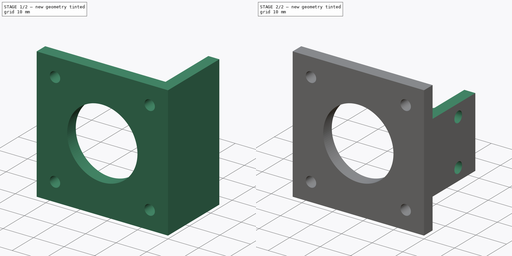
[diagram: build sequence overview — one tinted view per stage of 2, left to right]
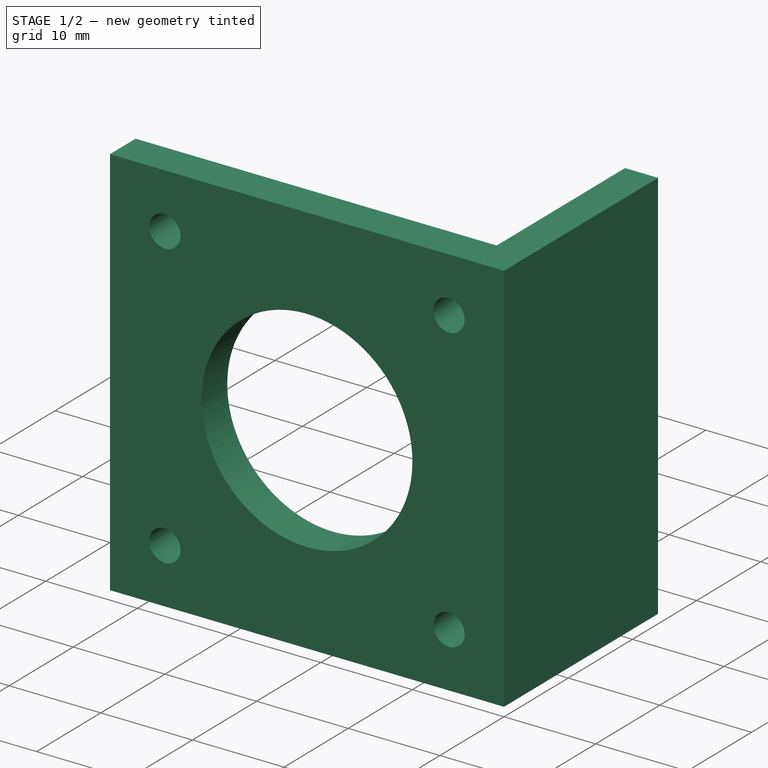
[diagram: stage 1 of 2 — iso view after this stage's code; geometry added in this stage tinted green]
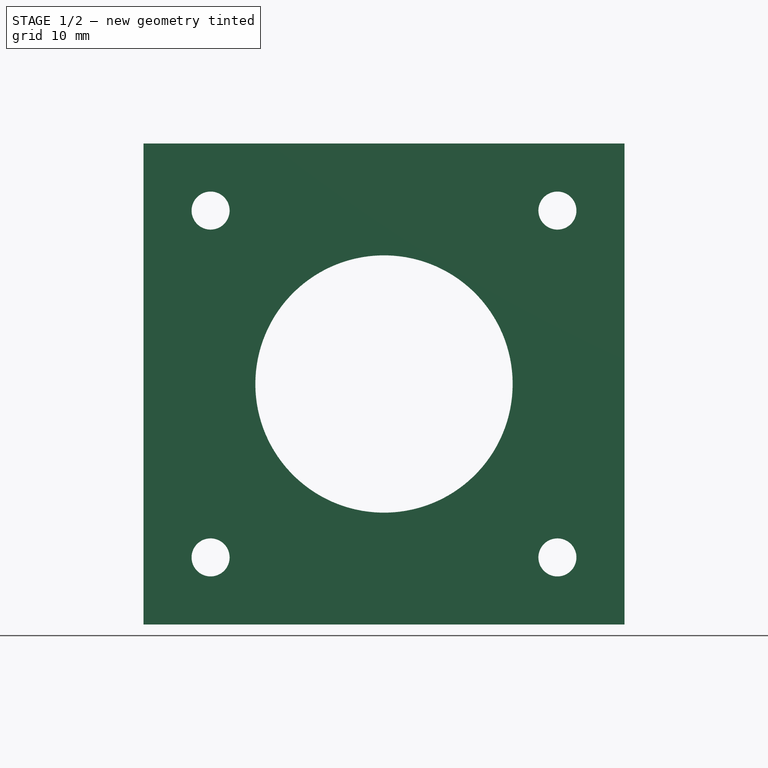
[diagram: stage 1 of 2 — front view after this stage's code; geometry added in this stage tinted green]
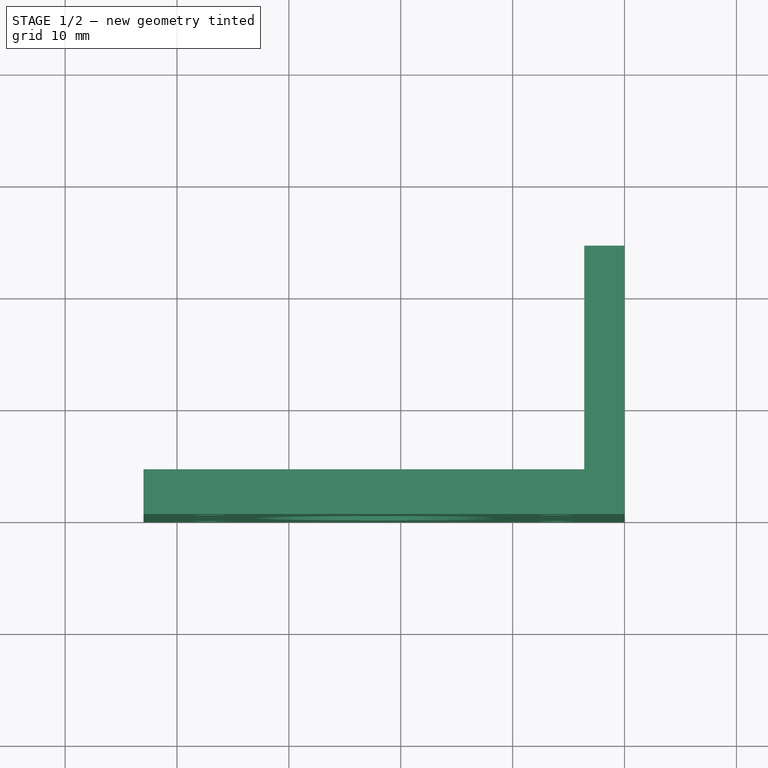
[diagram: stage 1 of 2 — top view after this stage's code; geometry added in this stage tinted green]
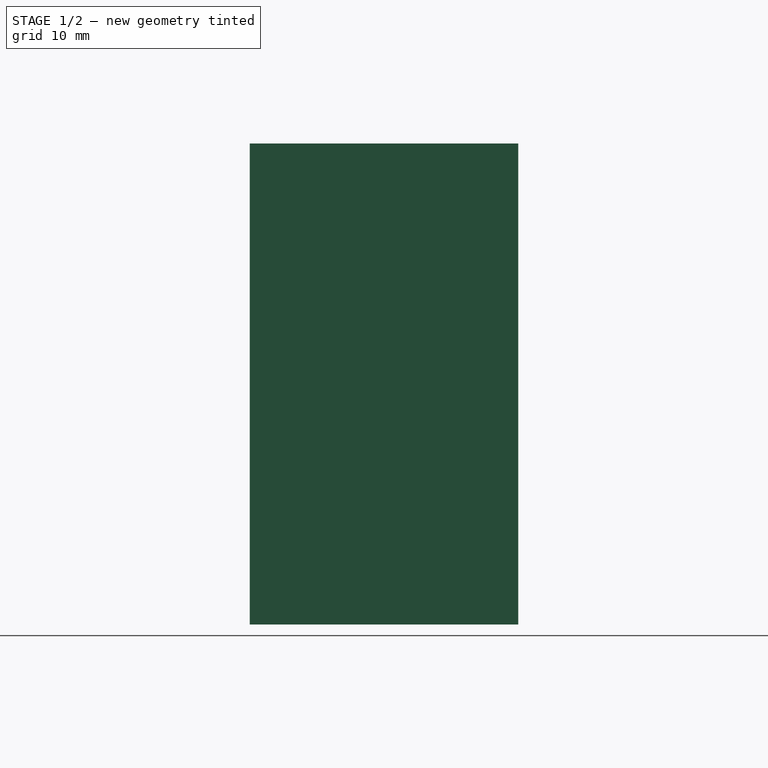
[diagram: stage 1 of 2 — right view after this stage's code; geometry added in this stage tinted green]
FCSTD DOCUMENT  (FreeCAD 0.16R6706 (Git))
Label: Suporte Motor Lateral
License: All rights reserved
LicenseURL: http://en.wikipedia.org/wiki/All_rights_reserved
objects: Sketcher::SketchObject×3, PartDesign::Pocket×2, PartDesign::Pad×1, PartDesign::Chamfer×1
note: 10 computed .brp shape members not serialized (recipe doc carries the construction recipe); baked Part::Feature solids carry a one-line shape summary decoded from their .brp

FEATURE [Sketcher::SketchObject] Sketch003
  sketch-geometry (6):
    g0: LineSegment StartX=-43 StartY=4 StartZ=0 EndX=-3.6 EndY=4 EndZ=0
    g1: LineSegment StartX=-3.6 StartY=4 StartZ=0 EndX=-3.6 EndY=24 EndZ=0
    g2: LineSegment StartX=-3.6 StartY=24 StartZ=0 EndX=0 EndY=24 EndZ=0
    g3: LineSegment StartX=0 StartY=24 StartZ=0 EndX=0 EndY=0 EndZ=0
    g4: LineSegment StartX=0 StartY=0 StartZ=0 EndX=-43 EndY=0 EndZ=0
    g5: LineSegment StartX=-43 StartY=0 StartZ=0 EndX=-43 EndY=4 EndZ=0
  constraints (17):
    c: Coincident(g0,g1)
    c: Coincident(g1,g2)
    c: Coincident(g2,g3)
    c: Coincident(g3,g4)
    c: Coincident(g4,g5)
    c: Coincident(g0,g5)
    c: Horizontal(g0)
    c: Horizontal(g4)
    c: Horizontal(g2)
    c: Vertical(g3)
    c: Vertical(g1)
    c: Vertical(g5)
    c: DistanceX(g4,g4) = 43
    c: DistanceX(g2,g2) = 3.6
    c: DistanceY(g5,g5) = 4
    c: Coincident(g-1,g3)
    c: DistanceY(g1,g1) = 20
FEATURE [PartDesign::Pad] Pad003
  Length = 43
  Length2 = 100
  Sketch = -> Sketch003
  Type = 0
FEATURE [Sketcher::SketchObject] Sketch004
  ExternalGeometry = -> [Pad003]
  Placement = pos=(0,0,0) rot=(1,0,0;1.5708rad)
  Support = -> Pad003 [Face5]
  sketch-geometry (9):
    g0: Circle CenterX=-21.5 CenterY=21.5 CenterZ=0 NormalX=0 NormalY=0 NormalZ=1 Radius=11.5
    g1: LineSegment [constr] StartX=-37 StartY=37 StartZ=0 EndX=-6 EndY=37 EndZ=0
    g2: LineSegment [constr] StartX=-6 StartY=37 StartZ=0 EndX=-6 EndY=6 EndZ=0
    g3: LineSegment [constr] StartX=-6 StartY=6 StartZ=0 EndX=-37 EndY=6 EndZ=0
    g4: LineSegment [constr] StartX=-37 StartY=6 StartZ=0 EndX=-37 EndY=37 EndZ=0
    g5: Circle CenterX=-37 CenterY=37 CenterZ=0 NormalX=0 NormalY=0 NormalZ=1 Radius=1.7
    g6: Circle CenterX=-6 CenterY=37 CenterZ=0 NormalX=0 NormalY=0 NormalZ=1 Radius=1.7
    g7: Circle CenterX=-6 CenterY=6 CenterZ=0 NormalX=0 NormalY=0 NormalZ=1 Radius=1.7
    g8: Circle CenterX=-37 CenterY=6 CenterZ=0 NormalX=0 NormalY=0 NormalZ=1 Radius=1.7
  constraints (23):
    c: Symmetric(g-6,g-5,g0)
    c: Radius(g0) = 11.5
    c: Coincident(g1,g2)
    c: Coincident(g2,g3)
    c: Coincident(g3,g4)
    c: Coincident(g4,g1)
    c: Horizontal(g1)
    c: Horizontal(g3)
    c: Vertical(g2)
    c: Vertical(g4)
    c: Symmetric(g1,g3,g0)
    c: DistanceX(g1,g1) = 31
    c: Equal(g1,g4)
    c: Radius(g5) = 1.7
    c: Equal(g5,g6) = 1.7
    c: Equal(g5,g7) = 1.7
    c: Equal(g5,g8) = 1.7
    c: Coincident(g1,g5)
    c: Coincident(g1,g6)
    c: Coincident(g2,g7)
    c: Coincident(g3,g8)
    c: DistanceX(g-6,g-6) = 43
    c: DistanceY(g-4,g-4) = 43
FEATURE [PartDesign::Pocket] Pocket
  Length = 5
  Sketch = -> Sketch004
  Type = 2
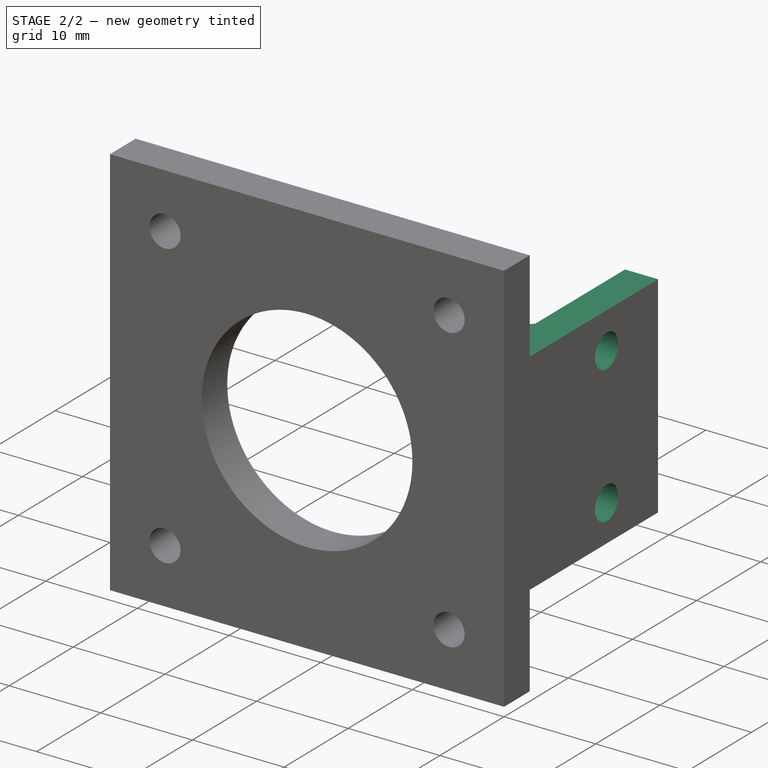
[diagram: stage 2 of 2 — iso view after this stage's code; geometry added in this stage tinted green]
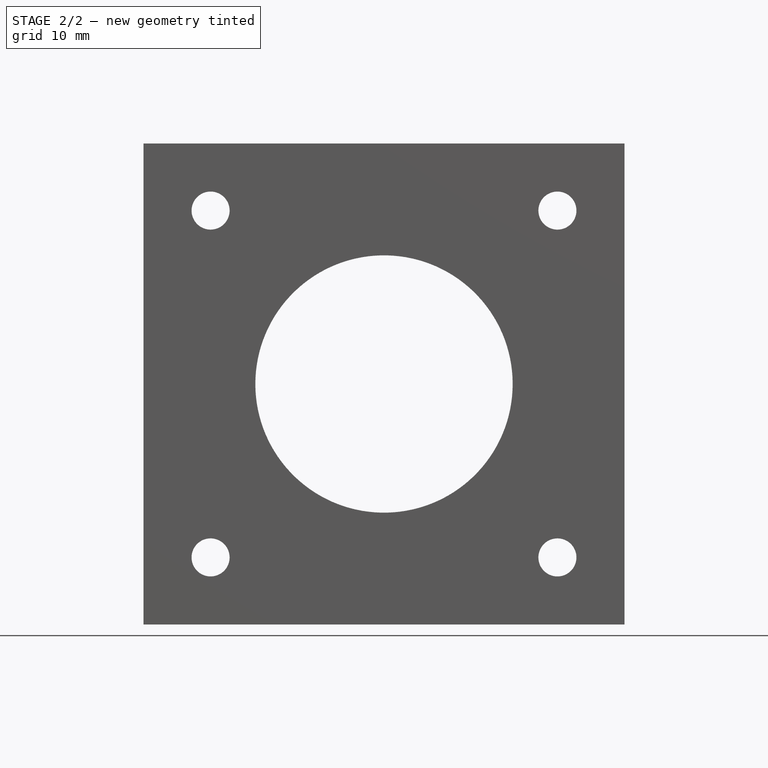
[diagram: stage 2 of 2 — front view after this stage's code; geometry added in this stage tinted green]
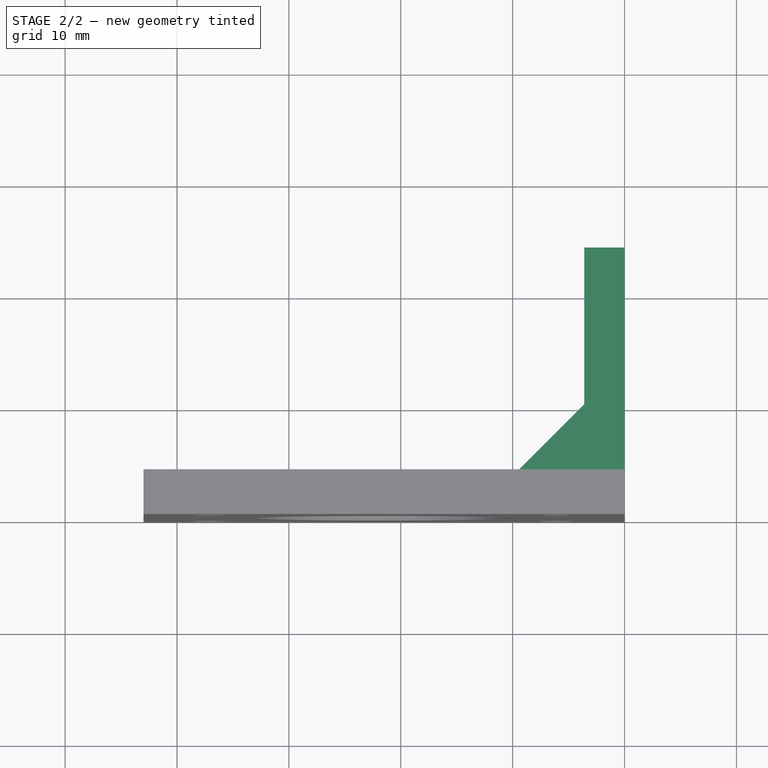
[diagram: stage 2 of 2 — top view after this stage's code; geometry added in this stage tinted green]
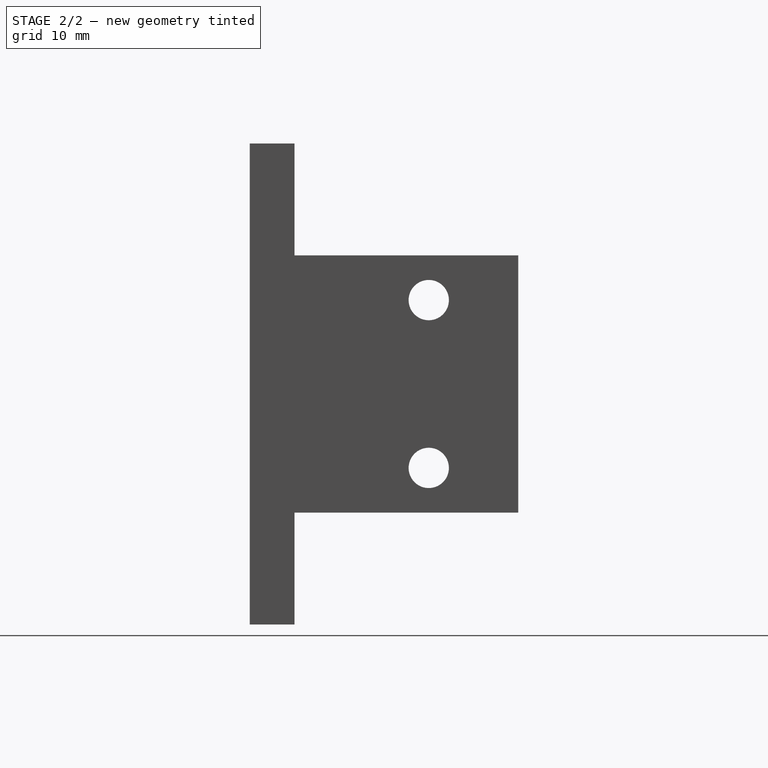
[diagram: stage 2 of 2 — right view after this stage's code; geometry added in this stage tinted green]
FEATURE [Sketcher::SketchObject] Sketch005
  ExternalGeometry = -> [Pocket]
  Placement = pos=(0,0,0) rot=(0.57735,0.57735,0.57735;2.0944rad)
  Support = -> Pocket [Face13]
  sketch-geometry (12):
    g0: LineSegment StartX=4 StartY=43 StartZ=0 EndX=24 EndY=43 EndZ=0
    g1: LineSegment StartX=24 StartY=43 StartZ=0 EndX=24 EndY=33 EndZ=0
    g2: LineSegment StartX=24 StartY=33 StartZ=0 EndX=4 EndY=33 EndZ=0
    g3: LineSegment StartX=4 StartY=33 StartZ=0 EndX=4 EndY=43 EndZ=0
    g4: LineSegment StartX=4 StartY=10 StartZ=0 EndX=24 EndY=10 EndZ=0
    g5: LineSegment StartX=24 StartY=10 StartZ=0 EndX=24 EndY=0 EndZ=0
    g6: LineSegment StartX=24 StartY=0 StartZ=0 EndX=4 EndY=0 EndZ=0
    g7: LineSegment StartX=4 StartY=0 StartZ=0 EndX=4 EndY=10 EndZ=0
    g8: LineSegment [constr] StartX=16 StartY=29 StartZ=0 EndX=16 EndY=14 EndZ=0
    g9: Circle CenterX=16 CenterY=29 CenterZ=0 NormalX=0 NormalY=0 NormalZ=1 Radius=1.8
    g10: Circle CenterX=16 CenterY=14 CenterZ=0 NormalX=0 NormalY=0 NormalZ=1 Radius=1.8
    g11: LineSegment [constr] StartX=16 StartY=21.5 StartZ=0 EndX=24 EndY=21.5 EndZ=0
  constraints (34):
    c: Coincident(g0,g1)
    c: Coincident(g1,g2)
    c: Coincident(g2,g3)
    c: Coincident(g3,g0)
    c: Horizontal(g0)
    c: Horizontal(g2)
    c: Vertical(g1)
    c: Vertical(g3)
    c: Coincident(g4,g5)
    c: Coincident(g5,g6)
    c: Coincident(g6,g7)
    c: Coincident(g7,g4)
    c: Horizontal(g4)
    c: Horizontal(g6)
    c: Vertical(g5)
    c: Vertical(g7)
    c: Equal(g0,g4) = 5
    c: Vertical(g8)
    c: DistanceY(g8,g8) = 15
    c: Radius(g9) = 1.8
    c: Equal(g9,g10) = 2
    c: Coincident(g8,g9)
    c: Coincident(g8,g10)
    c: DistanceX(g-1,g8) = 16
    c: Horizontal(g11)
    c: DistanceX(g11,g11) = 8
    c: Symmetric(g-6,g-6,g11)
    c: Symmetric(g8,g8,g11)
    c: PointOnObject(g4,g3)
    c: DistanceX(g-4,g0) = 4
    c: Coincident(g0,g-6)
    c: Coincident(g5,g-6)
    c: Equal(g3,g7)
    c: DistanceY(g8,g1) = 4
FEATURE [PartDesign::Pocket] Pocket001
  Length = 5
  Sketch = -> Sketch005
  Type = 2
FEATURE [PartDesign::Chamfer] Chamfer
  Base = -> Pocket001 [Edge6]
  Size = 6
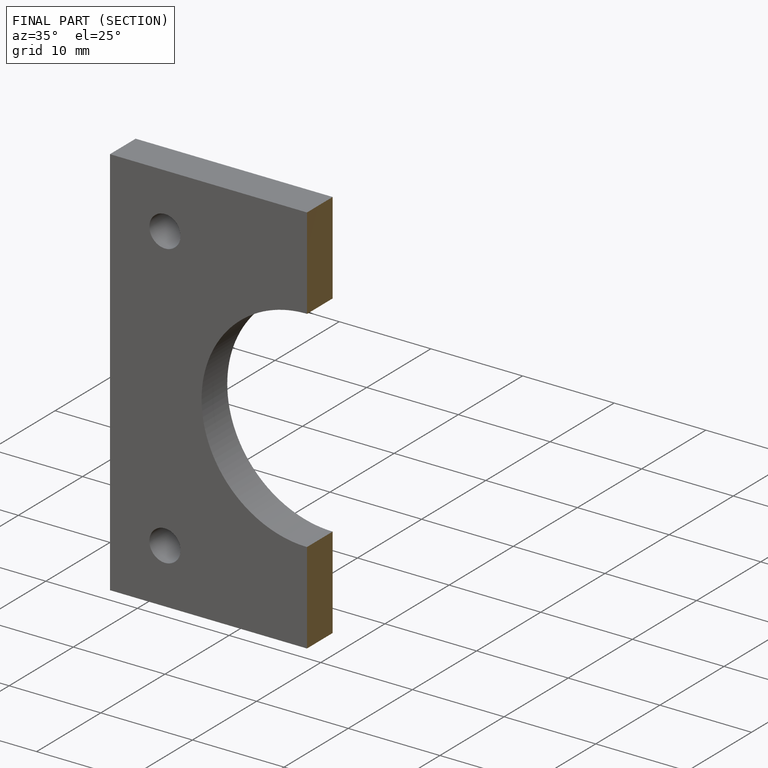
[diagram: finished part — half-section view (interior)]
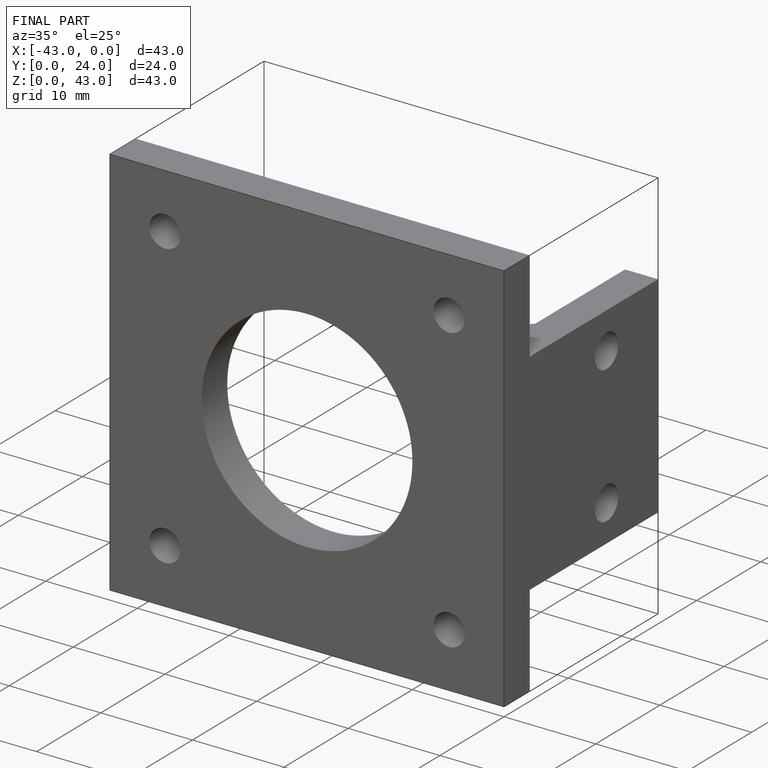
[diagram: finished part — iso view with bounding-box wireframe]
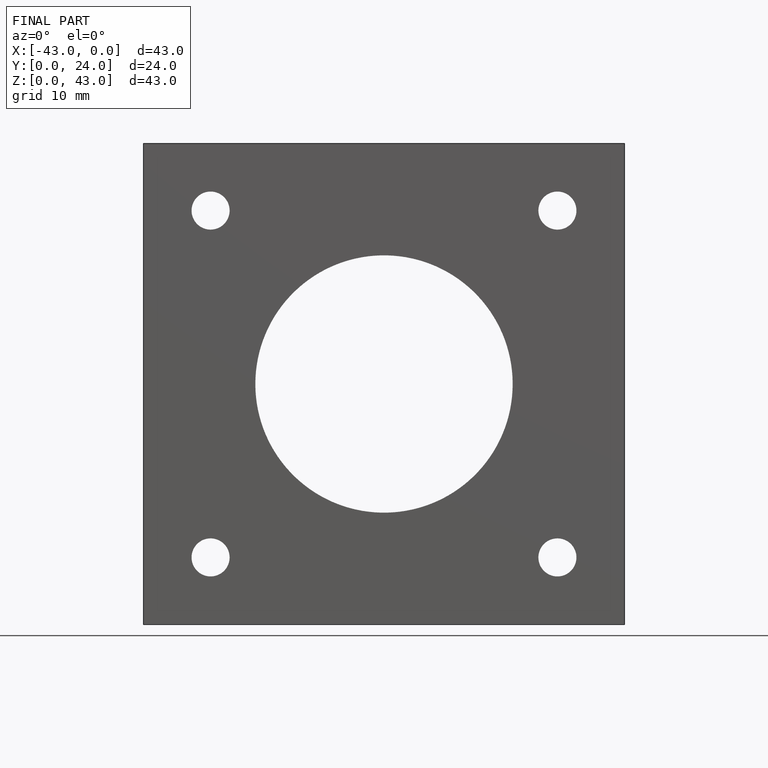
[diagram: finished part — front view with bounding-box wireframe]
